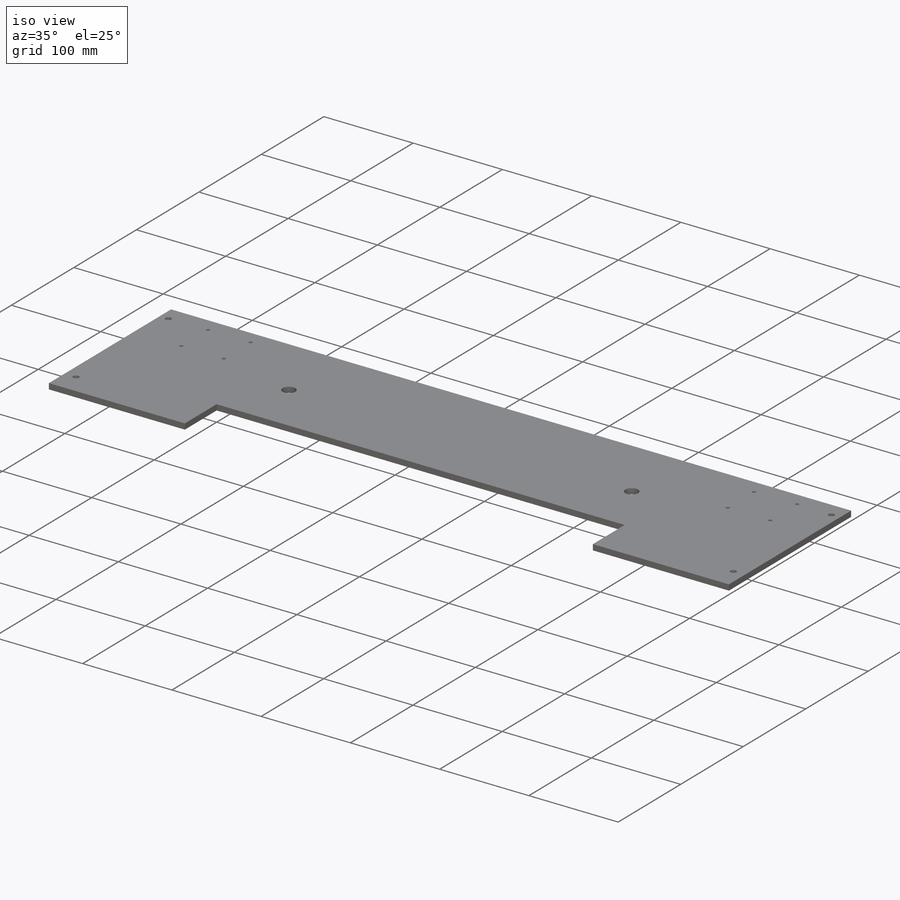
[diagram: iso view]
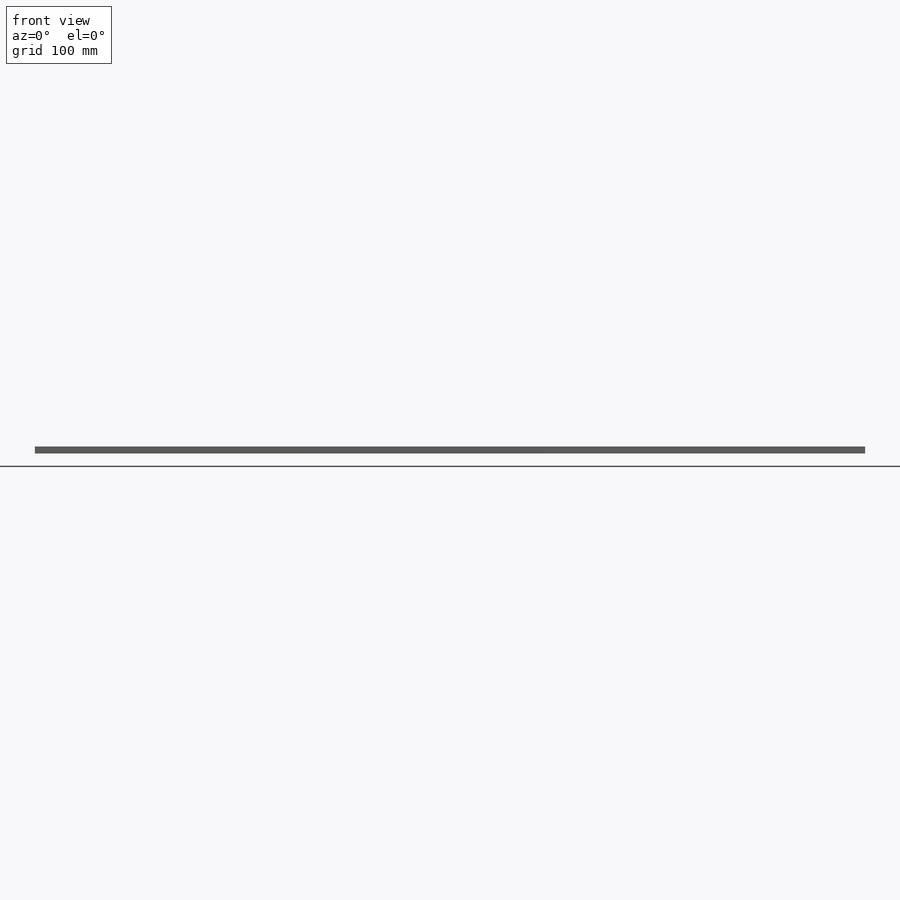
[diagram: front view]
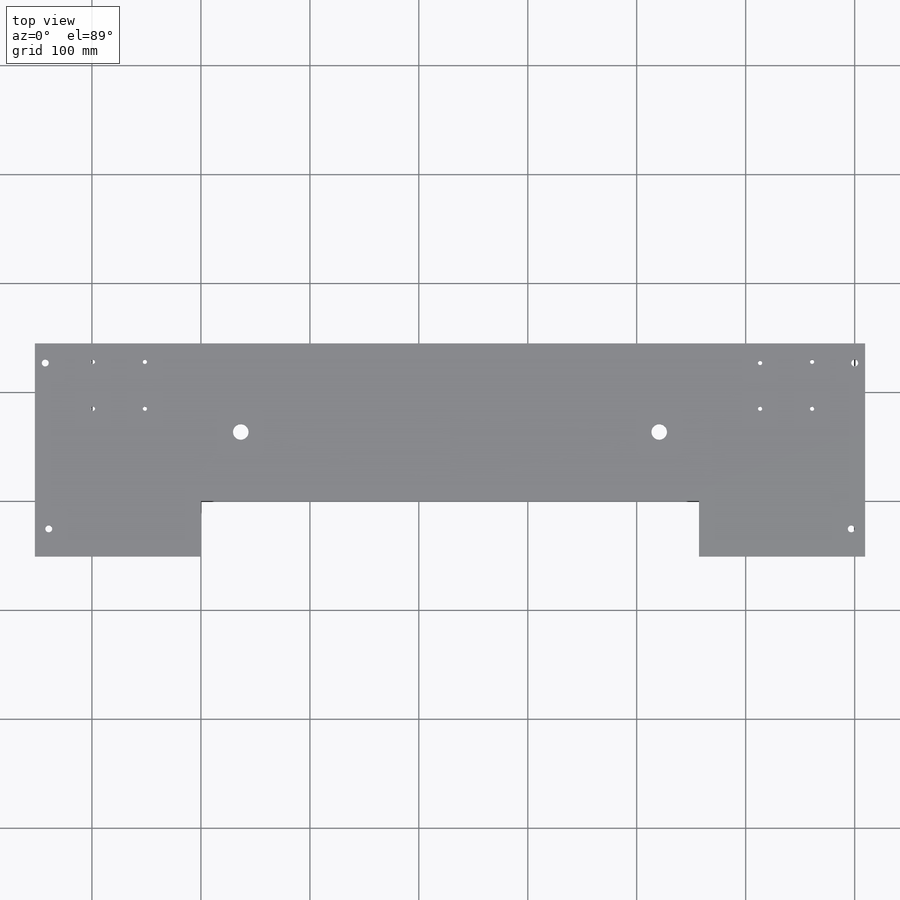
[diagram: top view]
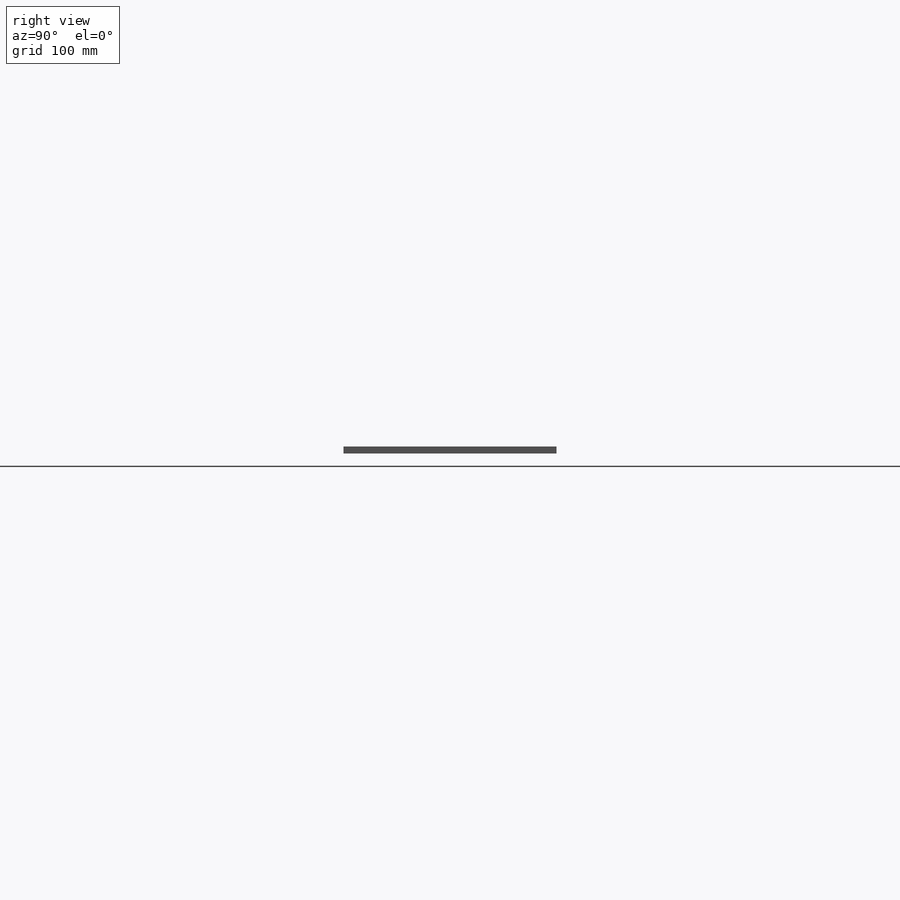
[diagram: right view]
SOLIDWORKS PART (.sldprt)
format: sldprt  version: not decoded by parser v0  size: 296,960 bytes
history: native  units: mm
features: sketch x3, material x1, extrude x1, cut_extrude x1 (+13 scaffold rows collapsed)
feature tree (19):
  scaffold x13  (default folders/planes/origin — collapsed)
  material  "Material <not specified>"
  sketch  "Sketch1"  dims[D1=195.58mm D2=195.58mm D3=457.2mm D4=762.0mm D5=152.4mm D6=152.4mm D7=144.78mm]
  extrude  "Boss-Extrude1"  Depth=6.35mm
  sketch  "Sketch3"  dims[c1.D1=6.35mm c1.D2=6.604mm c1.D3=6.604mm c1.D4=3.81mm c1.D5=10.033mm c1.D6=10.033mm c1.D7=10.033mm c1.D8=10.033mm c1.D9=10.033mm c1.D10=10.033mm c2.D7=6.35mm c2.D8=6.604mm c2.D9=6.604mm c2.D10=3.81mm c2.D11=10.033mm c2.D12=6.35mm c2.D13=6.35mm c2.D14=6.35mm c2.D15=6.35mm c3.D13=3.81mm c3.D14=6.35mm c3.D15=6.35mm c3.D16=14.2875mm c3.D17=14.2875mm c3.D18=14.2875mm c3.D20=6.35mm c3.D21=6.35mm c3.D22=6.35mm c3.D23=6.35mm c3.D24=6.35mm c3.D25=6.35mm c3.D26=3.81mm c3.D27=4.826mm c3.D28=4.826mm c3.D29=3.81mm c3.D30=3.81mm c3.D31=3.81mm c3.D32=3.81mm c3.D33=3.81mm c4.D32=3.81mm c4.D33=3.81mm c5.D32=3.81mm c5.D33=3.81mm c5.D34=3.81mm c5.D35=3.81mm c5.D36=3.81mm c5.D37=3.81mm c5.D38=14.2875mm c5.D39=14.2875mm c5.D40=14.2875mm c5.D6=3.81mm c5.D19=3.81mm c5.D41=3.81mm c5.D42=3.81mm c5.D2=12.7mm c5.D3=25.4mm c5.D5=53.2892mm c6.D6=55.8292mm c6.D8=48.387mm c6.D9=5.0292mm c7.D8=9.525mm c7.D9=~17.96288mm c7.D11=59.9694mm c7.D12=100.965mm c7.D14=100.965mm c7.D15=16.9164mm c7.D17=188.976mm c7.D18=63.5mm c7.D19=50.8mm c7.D21=9.525mm c7.D22=~17.96288mm c7.D24=12.7mm c7.D25=25.4mm c7.D27=48.641mm c7.D28=16.9164mm c7.D30=59.9694mm c7.D31=96.393mm c7.D33=48.641mm c7.D34=59.9694mm c7.D36=~17.96288mm c7.D37=96.393mm c7.D39=81.28mm c7.D40=188.976mm c7.D6=59.9694mm c7.D41=16.9164mm c7.D42=53.2892mm]
  cut_extrude  "Cut-Extrude1"  Depth=7.62mm
  sketch  "Sketch5"  dims[c1.D5=14.2875mm c1.D7=14.2875mm c1.D1=14.2875mm c1.D9=6.35mm c1.D10=6.35mm c1.D11=6.35mm c1.D12=6.35mm c1.D13=6.35mm c1.D14=6.35mm c1.D15=6.35mm c2.D13=6.35mm c2.D16=6.35mm c2.D1=368.3mm c2.D2=~7.14375mm c2.D3=~8.60425mm c3.D1=50.8mm c3.D2=50.8mm c3.D3=196.85mm c3.D4=7.874mm c3.D5=7.874mm c3.D6=368.3mm c3.D7=14.224mm c4.D1=7.874mm c4.D2=7.874mm c4.D7=44.45mm c4.D8=144.78mm c4.D10=6.35mm c4.D11=12.7mm c4.D13=203.2mm c4.D14=53.34mm c4.D15=12.7mm c4.D16=25.4mm]
decode coverage: 5 of 5 modeling features carry decoded parameters
note: ~ marks probable driven/reference dimensions
note: suppression state not decoded; provenance and decode notes live in map.json
